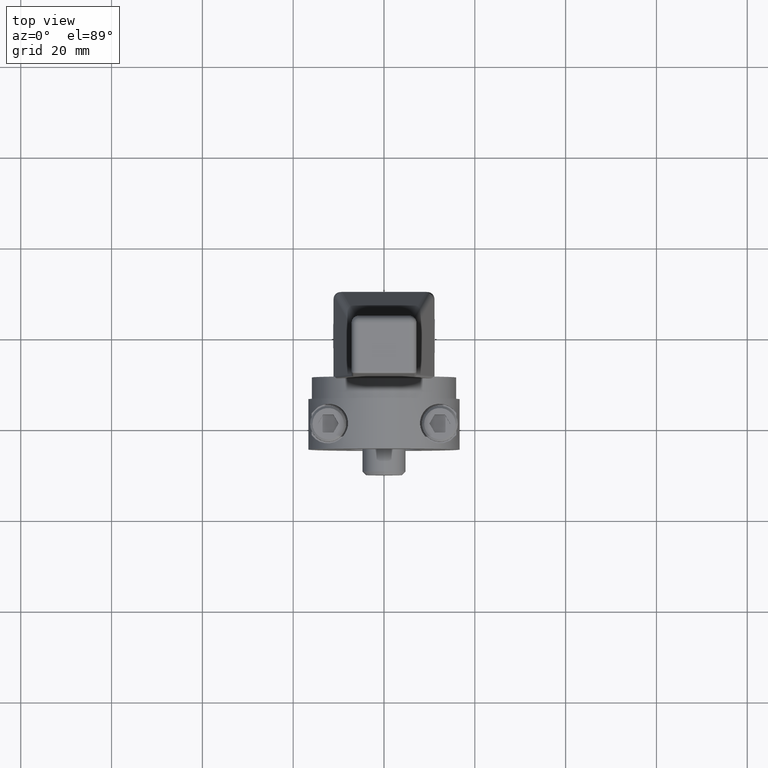
[diagram: clean part render]
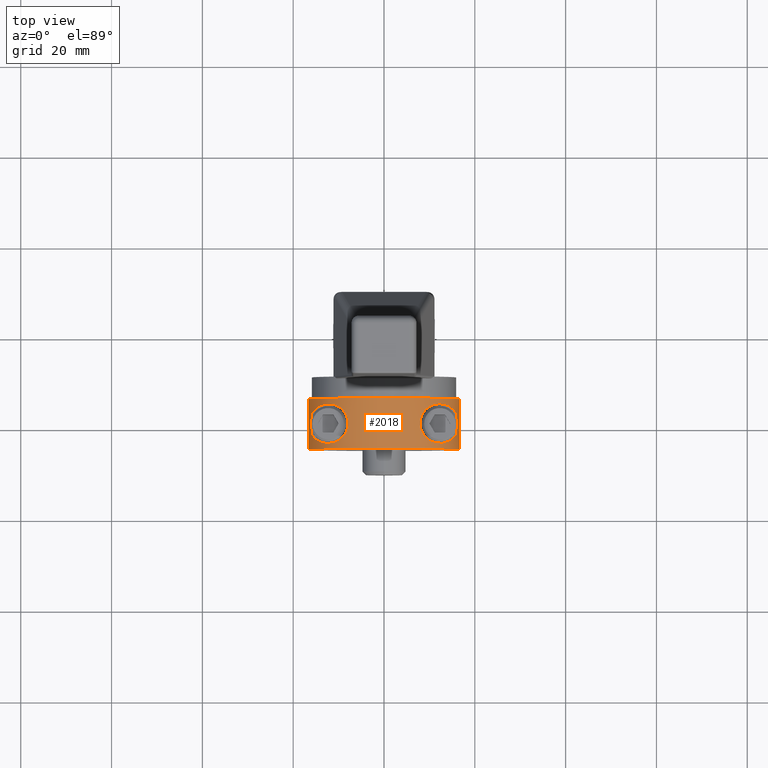
[diagram: same view with one face highlighted and labeled with its STEP entity id]
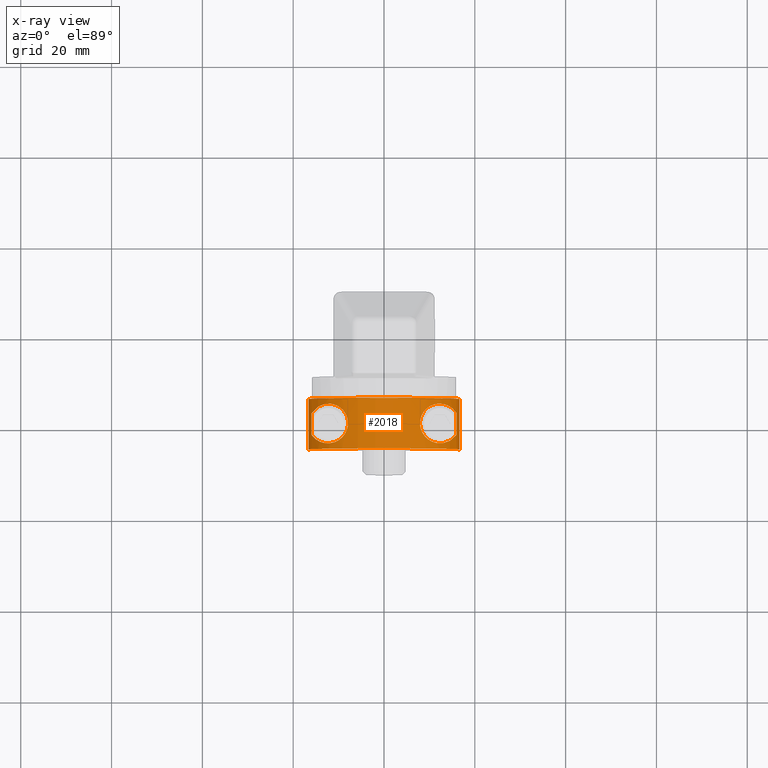
[diagram: x-ray of the same camera — body ghosted, the highlighted face saturated]
A machine part, top view. The second image highlights one B-rep face of the part: STEP entity #2018.
The next image is the same camera in x-ray: the body ghosted, the highlighted face saturated — about 0% of this face is hidden behind the body in this view.
In plain terms, the highlighted cylindrical surface (partial cylindrical patch) has radius 16.6624 mm, axis along (0, 1, 0).
Its self-contained STEP definition (entity closure, byte-faithful):
#260=DIRECTION('',(0.E0,1.E0,0.E0));
#261=VECTOR('',#260,4.38E-1);
#262=CARTESIAN_POINT('',(6.553136653542E-1,-2.19E-1,3.E-2));
#263=LINE('',#262,#261);
#325=CARTESIAN_POINT('',(0.E0,2.19E-1,0.E0));
#326=DIRECTION('',(0.E0,1.E0,0.E0));
#327=DIRECTION('',(-9.989537581619E-1,0.E0,4.573170731707E-2));
#328=AXIS2_PLACEMENT_3D('',#325,#326,#327);
#624=DIRECTION('',(0.E0,1.E0,0.E0));
#625=VECTOR('',#624,4.38E-1);
#626=CARTESIAN_POINT('',(-6.553136653542E-1,-2.19E-1,3.E-2));
#627=LINE('',#626,#625);
#655=CARTESIAN_POINT('',(0.E0,-2.19E-1,0.E0));
#656=DIRECTION('',(0.E0,1.E0,0.E0));
#657=DIRECTION('',(-9.989537581619E-1,0.E0,4.573170731707E-2));
#658=AXIS2_PLACEMENT_3D('',#655,#656,#657);
#686=DIRECTION('',(0.E0,1.E0,0.E0));
#687=VECTOR('',#686,3.396191810309E-2);
#688=CARTESIAN_POINT('',(6.278821545481E-1,-9.424396852101E-2,1.9E-1));
#689=LINE('',#688,#687);
#690=DIRECTION('',(0.E0,1.E0,0.E0));
#691=VECTOR('',#690,3.396191810309E-2);
#692=CARTESIAN_POINT('',(6.278821545481E-1,6.028205041792E-2,1.9E-1));
#693=LINE('',#692,#691);
#699=DIRECTION('',(0.E0,1.E0,0.E0));
#700=VECTOR('',#699,3.396191810309E-2);
#701=CARTESIAN_POINT('',(-6.278821545481E-1,6.028205041792E-2,1.9E-1));
#702=LINE('',#701,#700);
#703=DIRECTION('',(0.E0,1.E0,0.E0));
#704=VECTOR('',#703,3.396191810309E-2);
#705=CARTESIAN_POINT('',(-6.278821545481E-1,-9.424396852101E-2,1.9E-1));
#706=LINE('',#705,#704);
#716=DIRECTION('',(0.E0,1.E0,0.E0));
#717=VECTOR('',#716,1.205641008358E-1);
#718=CARTESIAN_POINT('',(-6.278821545481E-1,-6.028205041792E-2,1.9E-1));
#719=LINE('',#718,#717);
#730=DIRECTION('',(0.E0,1.E0,0.E0));
#731=VECTOR('',#730,1.205641008358E-1);
#732=CARTESIAN_POINT('',(6.278821545481E-1,-6.028205041792E-2,1.9E-1));
#733=LINE('',#732,#731);
#961=CARTESIAN_POINT('',(6.278821545481E-1,-9.424396852101E-2,1.9E-1));
#962=CARTESIAN_POINT('',(6.195005299219E-1,-1.070401848599E-1,
2.176982764679E-1));
#963=CARTESIAN_POINT('',(5.998418495519E-1,-1.295591187614E-1,
2.694003161334E-1));
#964=CARTESIAN_POINT('',(5.653486892914E-1,-1.533553217938E-1,
3.352102134587E-1));
#965=CARTESIAN_POINT('',(5.281432427635E-1,-1.677502906570E-1,
3.908086135035E-1));
#966=CARTESIAN_POINT('',(4.903941540846E-1,-1.732211567883E-1,
4.369077470533E-1));
#967=CARTESIAN_POINT('',(4.539929101062E-1,-1.706006983134E-1,
4.743464845139E-1));
#968=CARTESIAN_POINT('',(4.205943779628E-1,-1.610770381888E-1,
5.039776581120E-1));
#969=CARTESIAN_POINT('',(3.909994645298E-1,-1.459104647215E-1,
5.271088629745E-1));
#970=CARTESIAN_POINT('',(3.655568446968E-1,-1.260699173215E-1,
5.449426346149E-1));
#971=CARTESIAN_POINT('',(3.445814971135E-1,-1.023504562296E-1,
5.583517540484E-1));
#972=CARTESIAN_POINT('',(3.284069131217E-1,-7.549638609790E-2,
5.679484840701E-1));
#973=CARTESIAN_POINT('',(3.173712280957E-1,-4.628690705297E-2,
5.741425129910E-1));
#974=CARTESIAN_POINT('',(3.117671231800E-1,-1.559840399087E-2,
5.771814363212E-1));
#975=CARTESIAN_POINT('',(3.117669007376E-1,1.559577012358E-2,
5.771815554175E-1));
#976=CARTESIAN_POINT('',(3.173704425697E-1,4.628403334654E-2,
5.741429435093E-1));
#977=CARTESIAN_POINT('',(3.284056173755E-1,7.549373940970E-2,
5.679492287027E-1));
#978=CARTESIAN_POINT('',(3.445798387583E-1,1.023482026973E-1,
5.583527710199E-1));
#979=CARTESIAN_POINT('',(3.655547956539E-1,1.260679945803E-1,
5.449440013646E-1));
#980=CARTESIAN_POINT('',(3.909970736923E-1,1.459089178584E-1,
5.271106212552E-1));
#981=CARTESIAN_POINT('',(4.205911211513E-1,1.610756908909E-1,
5.039803259422E-1));
#982=CARTESIAN_POINT('',(4.539891571492E-1,1.706001193204E-1,
4.743501126255E-1));
#983=CARTESIAN_POINT('',(4.903925598872E-1,1.732213611095E-1,
4.369096505004E-1));
#984=CARTESIAN_POINT('',(5.281430177033E-1,1.677504510755E-1,
3.908090378686E-1));
#985=CARTESIAN_POINT('',(5.653496112375E-1,1.533548924410E-1,
3.352087459113E-1));
#986=CARTESIAN_POINT('',(5.998424726039E-1,1.295584982014E-1,
2.693988414506E-1));
#987=CARTESIAN_POINT('',(6.195007303931E-1,1.070398788008E-1,
2.176976139823E-1));
#988=CARTESIAN_POINT('',(6.278821545481E-1,9.424396852101E-2,1.9E-1));
#990=CARTESIAN_POINT('',(-6.278821545481E-1,9.424396852101E-2,1.9E-1));
#991=CARTESIAN_POINT('',(-6.195005361572E-1,1.070401753405E-1,
2.176982558625E-1));
#992=CARTESIAN_POINT('',(-5.998418698178E-1,1.295590981194E-1,
2.694002674293E-1));
#993=CARTESIAN_POINT('',(-5.653487254374E-1,1.533553036227E-1,
3.352101540572E-1));
#994=CARTESIAN_POINT('',(-5.281432593826E-1,1.677502872682E-1,
3.908085924413E-1));
#995=CARTESIAN_POINT('',(-4.903941686389E-1,1.732211574678E-1,
4.369077317329E-1));
#996=CARTESIAN_POINT('',(-4.539928920370E-1,1.706006967981E-1,
4.743465029008E-1));
#997=CARTESIAN_POINT('',(-4.205943602922E-1,1.610770304419E-1,
5.039776723216E-1));
#998=CARTESIAN_POINT('',(-3.909994561990E-1,1.459104591691E-1,
5.271088690665E-1));
#999=CARTESIAN_POINT('',(-3.655568367347E-1,1.260699097800E-1,
5.449426399202E-1));
#1000=CARTESIAN_POINT('',(-3.445814935169E-1,1.023504508683E-1,
5.583517562005E-1));
#1001=CARTESIAN_POINT('',(-3.284069116450E-1,7.549638265122E-2,
5.679484849112E-1));
#1002=CARTESIAN_POINT('',(-3.173712283206E-1,4.628690708504E-2,
5.741425128591E-1));
#1003=CARTESIAN_POINT('',(-3.117671234845E-1,1.559840632886E-2,
5.771814361588E-1));
#1004=CARTESIAN_POINT('',(-3.117669004797E-1,-1.559576642143E-2,
5.771815555564E-1));
#1005=CARTESIAN_POINT('',(-3.173704412558E-1,-4.628402795474E-2,
5.741429442226E-1));
#1006=CARTESIAN_POINT('',(-3.284056136262E-1,-7.549373133537E-2,
5.679492308499E-1));
#1007=CARTESIAN_POINT('',(-3.445798323335E-1,-1.023481935413E-1,
5.583527749116E-1));
#1008=CARTESIAN_POINT('',(-3.655547846135E-1,-1.260679841589E-1,
5.449440087242E-1));
#1009=CARTESIAN_POINT('',(-3.909970617186E-1,-1.459089099909E-1,
5.271106300337E-1));
#1010=CARTESIAN_POINT('',(-4.205911000159E-1,-1.610756818528E-1,
5.039803430680E-1));
#1011=CARTESIAN_POINT('',(-4.539891357448E-1,-1.706001171142E-1,
4.743501341132E-1));
#1012=CARTESIAN_POINT('',(-4.903925686466E-1,-1.732213619067E-1,
4.369096415728E-1));
#1013=CARTESIAN_POINT('',(-5.281430289905E-1,-1.677504491337E-1,
3.908090240148E-1));
#1014=CARTESIAN_POINT('',(-5.653496429083E-1,-1.533548767366E-1,
3.352086941517E-1));
#1015=CARTESIAN_POINT('',(-5.998424907192E-1,-1.295584797731E-1,
2.693987979633E-1));
#1016=CARTESIAN_POINT('',(-6.195007360147E-1,-1.070398702184E-1,
2.176975954051E-1));
#1017=CARTESIAN_POINT('',(-6.278821545481E-1,-9.424396852101E-2,1.9E-1));
#1102=CARTESIAN_POINT('',(-6.553136653542E-1,-2.19E-1,3.E-2));
#1103=VERTEX_POINT('',#1102);
#1104=CARTESIAN_POINT('',(6.553136653542E-1,-2.19E-1,3.E-2));
#1105=VERTEX_POINT('',#1104);
#1110=CARTESIAN_POINT('',(-6.553136653542E-1,2.19E-1,3.E-2));
#1111=CARTESIAN_POINT('',(6.553136653542E-1,2.19E-1,3.E-2));
#1112=VERTEX_POINT('',#1110);
#1113=VERTEX_POINT('',#1111);
#1122=CARTESIAN_POINT('',(6.278821545481E-1,9.424396852101E-2,1.9E-1));
#1123=CARTESIAN_POINT('',(6.278821545481E-1,-9.424396852101E-2,1.9E-1));
#1124=VERTEX_POINT('',#1122);
#1125=VERTEX_POINT('',#1123);
#1126=VERTEX_POINT('',#990);
#1127=VERTEX_POINT('',#1017);
#1128=CARTESIAN_POINT('',(-6.278821545481E-1,-6.028205041792E-2,1.9E-1));
#1129=CARTESIAN_POINT('',(-6.278821545481E-1,6.028205041792E-2,1.9E-1));
#1130=VERTEX_POINT('',#1128);
#1131=VERTEX_POINT('',#1129);
#1132=CARTESIAN_POINT('',(6.278821545481E-1,-6.028205041792E-2,1.9E-1));
#1133=CARTESIAN_POINT('',(6.278821545481E-1,6.028205041792E-2,1.9E-1));
#1134=VERTEX_POINT('',#1132);
#1135=VERTEX_POINT('',#1133);
#1986=CARTESIAN_POINT('',(0.E0,-2.19E-1,0.E0));
#1987=DIRECTION('',(0.E0,1.E0,0.E0));
#1988=DIRECTION('',(1.E0,0.E0,0.E0));
#1989=AXIS2_PLACEMENT_3D('',#1986,#1987,#1988);
#1990=CYLINDRICAL_SURFACE('',#1989,6.56E-1);
#1992=ORIENTED_EDGE('',*,*,#1991,.F.);
#1993=ORIENTED_EDGE('',*,*,#1971,.T.);
#1994=ORIENTED_EDGE('',*,*,#1564,.T.);
#1995=ORIENTED_EDGE('',*,*,#1477,.F.);
#1996=EDGE_LOOP('',(#1992,#1993,#1994,#1995));
#1997=FACE_OUTER_BOUND('',#1996,.F.);
#1999=ORIENTED_EDGE('',*,*,#1998,.F.);
#2001=ORIENTED_EDGE('',*,*,#2000,.F.);
#2003=ORIENTED_EDGE('',*,*,#2002,.F.);
#2005=ORIENTED_EDGE('',*,*,#2004,.F.);
#2006=EDGE_LOOP('',(#1999,#2001,#2003,#2005));
#2007=FACE_BOUND('',#2006,.F.);
#2009=ORIENTED_EDGE('',*,*,#2008,.T.);
#2011=ORIENTED_EDGE('',*,*,#2010,.F.);
#2013=ORIENTED_EDGE('',*,*,#2012,.T.);
#2015=ORIENTED_EDGE('',*,*,#2014,.T.);
#2016=EDGE_LOOP('',(#2009,#2011,#2013,#2015));
#2017=FACE_BOUND('',#2016,.F.);
#2018=ADVANCED_FACE('',(#1997,#2007,#2017),#1990,.T.);
#329=CIRCLE('',#328,6.56E-1);
#659=CIRCLE('',#658,6.56E-1);
#989=B_SPLINE_CURVE_WITH_KNOTS('',3,(#961,#962,#963,#964,#965,#966,#967,#968,
#969,#970,#971,#972,#973,#974,#975,#976,#977,#978,#979,#980,#981,#982,#983,#984,
#985,#986,#987,#988),.UNSPECIFIED.,.F.,.F.,(4,1,1,1,1,1,1,1,1,1,1,1,1,1,1,1,1,1,
1,1,1,1,1,1,1,4),(0.E0,4.E-2,8.E-2,1.2E-1,1.6E-1,2.E-1,2.4E-1,2.8E-1,3.2E-1,
3.6E-1,4.E-1,4.4E-1,4.8E-1,5.2E-1,5.6E-1,6.E-1,6.4E-1,6.8E-1,7.2E-1,7.6E-1,
8.E-1,8.4E-1,8.8E-1,9.2E-1,9.6E-1,1.E0),.UNSPECIFIED.);
#1018=B_SPLINE_CURVE_WITH_KNOTS('',3,(#990,#991,#992,#993,#994,#995,#996,#997,
#998,#999,#1000,#1001,#1002,#1003,#1004,#1005,#1006,#1007,#1008,#1009,#1010,
#1011,#1012,#1013,#1014,#1015,#1016,#1017),.UNSPECIFIED.,.F.,.F.,(4,1,1,1,1,1,1,
1,1,1,1,1,1,1,1,1,1,1,1,1,1,1,1,1,1,4),(0.E0,4.E-2,8.E-2,1.2E-1,1.6E-1,2.E-1,
2.4E-1,2.8E-1,3.2E-1,3.6E-1,4.E-1,4.4E-1,4.8E-1,5.2E-1,5.6E-1,6.E-1,6.4E-1,
6.8E-1,7.2E-1,7.6E-1,8.E-1,8.4E-1,8.8E-1,9.2E-1,9.6E-1,1.E0),.UNSPECIFIED.);
#1477=EDGE_CURVE('',#1105,#1113,#263,.T.);
#1564=EDGE_CURVE('',#1112,#1113,#329,.T.);
#1971=EDGE_CURVE('',#1103,#1112,#627,.T.);
#1991=EDGE_CURVE('',#1103,#1105,#659,.T.);
#1998=EDGE_CURVE('',#1127,#1130,#706,.T.);
#2000=EDGE_CURVE('',#1126,#1127,#1018,.T.);
#2002=EDGE_CURVE('',#1131,#1126,#702,.T.);
#2004=EDGE_CURVE('',#1130,#1131,#719,.T.);
#2008=EDGE_CURVE('',#1135,#1124,#693,.T.);
#2010=EDGE_CURVE('',#1125,#1124,#989,.T.);
#2012=EDGE_CURVE('',#1125,#1134,#689,.T.);
#2014=EDGE_CURVE('',#1134,#1135,#733,.T.);